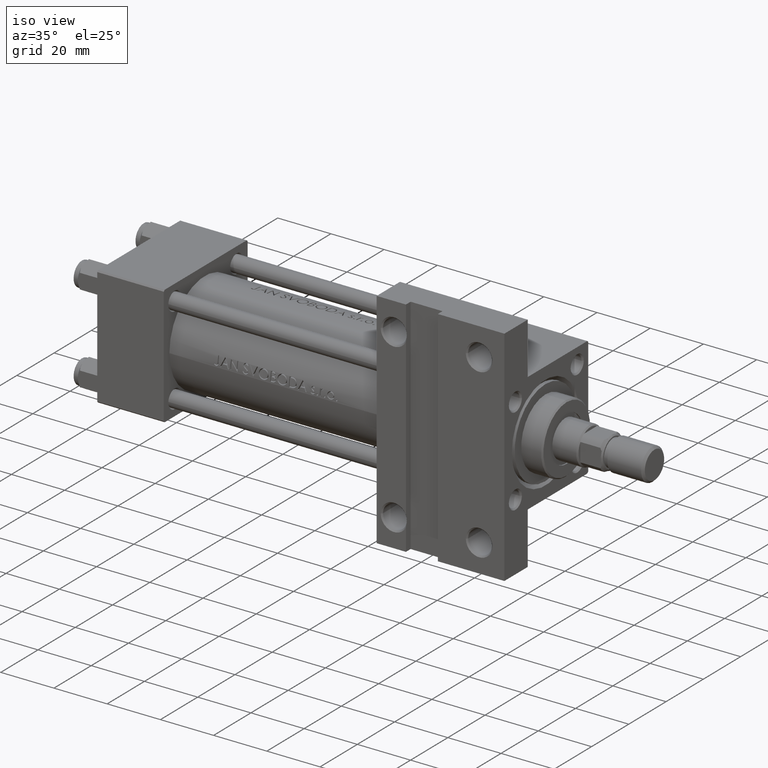
[diagram: clean part render]
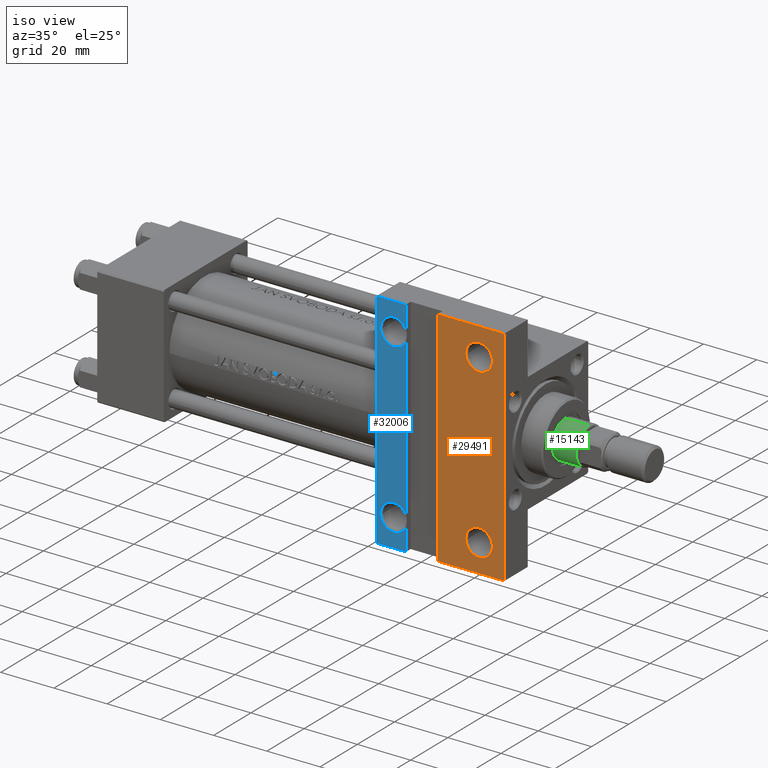
[diagram: same view with three faces highlighted in distinct colors, each labeled with its STEP entity id]
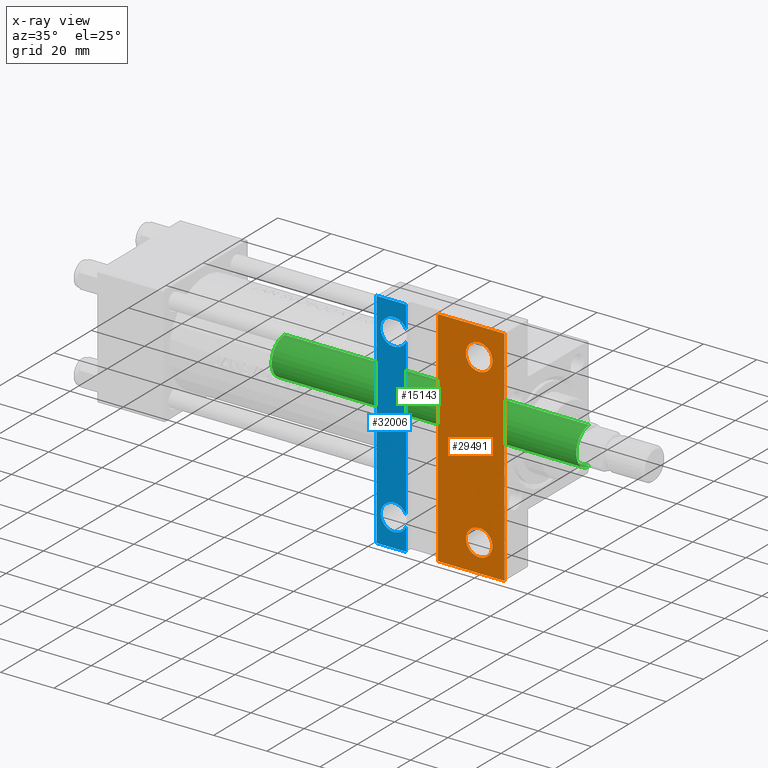
[diagram: x-ray of the same camera — body ghosted, the three highlighted faces saturated]
A machine part, iso view with three faces highlighted in distinct colors.
The next image is the same camera in x-ray (body ghosted, the three faces saturated) — at least one of them is partly hidden behind the body in this view.
Their STEP definitions:

[orange] entity #29491 — the highlighted planar face has unit normal (0, -1, -0).
#362 = VECTOR ( 'NONE', #38834, 1000.000000000000000 ) ;
#755 = CARTESIAN_POINT ( 'NONE',  ( 148.4994999999999550, -31.50000000000000000, -22.50000000000000000 ) ) ;
#782 = CARTESIAN_POINT ( 'NONE',  ( 127.9999999999999432, 41.99999999999999289, -22.50000000000000000 ) ) ;
#995 = VECTOR ( 'NONE', #40705, 1000.000000000000000 ) ;
#1049 = EDGE_CURVE ( 'NONE', #4152, #47851, #29290, .T. ) ;
#1260 = DIRECTION ( 'NONE',  ( -0.000000000000000000, -7.709882115452476934E-17, 1.000000000000000000 ) ) ;
#1331 = VERTEX_POINT ( 'NONE', #39713 ) ;
#2778 = LINE ( 'NONE', #23985, #362 ) ;
#2982 = LINE ( 'NONE', #32223, #9595 ) ;
#3825 = DIRECTION ( 'NONE',  ( 0.000000000000000000, 1.000000000000000000, 0.000000000000000000 ) ) ;
#4152 = VERTEX_POINT ( 'NONE', #755 ) ;
#5591 = EDGE_LOOP ( 'NONE', ( #40701, #33380, #30651, #6243 ) ) ;
#5730 = CARTESIAN_POINT ( 'NONE',  ( 153.0000000000000284, 22.50000000000000355, -22.49999999999999645 ) ) ;
#6243 = ORIENTED_EDGE ( 'NONE', *, *, #9465, .T. ) ;
#6559 = CIRCLE ( 'NONE', #33802, 4.999499999999983402 ) ;
#6596 = EDGE_LOOP ( 'NONE', ( #28131, #28924 ) ) ;
#7394 = EDGE_CURVE ( 'NONE', #35777, #47666, #44615, .T. ) ;
#9370 = DIRECTION ( 'NONE',  ( 0.000000000000000000, 7.709882115452476934E-17, -1.000000000000000000 ) ) ;
#9465 = EDGE_CURVE ( 'NONE', #1331, #19539, #2982, .T. ) ;
#9595 = VECTOR ( 'NONE', #46832, 1000.000000000000000 ) ;
#9615 = FACE_BOUND ( 'NONE', #6596, .T. ) ;
#11175 = ORIENTED_EDGE ( 'NONE', *, *, #15725, .T. ) ;
#11631 = EDGE_CURVE ( 'NONE', #35777, #19539, #2778, .T. ) ;
#12633 = CARTESIAN_POINT ( 'NONE',  ( 143.5000000000000284, -31.50000000000000000, -22.50000000000000000 ) ) ;
#14529 = EDGE_CURVE ( 'NONE', #47851, #4152, #19892, .T. ) ;
#15252 = DIRECTION ( 'NONE',  ( -0.000000000000000000, -7.709882115452476934E-17, 1.000000000000000000 ) ) ;
#15725 = EDGE_CURVE ( 'NONE', #22274, #40651, #44075, .T. ) ;
#17007 = LINE ( 'NONE', #17238, #21703 ) ;
#17238 = CARTESIAN_POINT ( 'NONE',  ( 153.0000000000000284, 22.50000000000000355, -22.49999999999999645 ) ) ;
#17652 = EDGE_CURVE ( 'NONE', #47666, #1331, #17007, .T. ) ;
#19539 = VERTEX_POINT ( 'NONE', #40886 ) ;
#19892 = CIRCLE ( 'NONE', #47128, 4.999499999999948763 ) ;
#21703 = VECTOR ( 'NONE', #43324, 1000.000000000000000 ) ;
#22274 = VERTEX_POINT ( 'NONE', #37439 ) ;
#23051 = AXIS2_PLACEMENT_3D ( 'NONE', #27317, #1260, #31001 ) ;
#23985 = CARTESIAN_POINT ( 'NONE',  ( 127.9999999999999432, -41.99999999999999289, -22.50000000000000000 ) ) ;
#24233 = DIRECTION ( 'NONE',  ( 0.000000000000000000, 1.000000000000000000, 7.709882115452476934E-17 ) ) ;
#24480 = FACE_BOUND ( 'NONE', #30786, .T. ) ;
#27317 = CARTESIAN_POINT ( 'NONE',  ( 143.5000000000000284, 31.50000000000000000, -22.49999999999999645 ) ) ;
#27448 = AXIS2_PLACEMENT_3D ( 'NONE', #5730, #9370, #24233 ) ;
#28131 = ORIENTED_EDGE ( 'NONE', *, *, #14529, .T. ) ;
#28924 = ORIENTED_EDGE ( 'NONE', *, *, #1049, .T. ) ;
#29290 = CIRCLE ( 'NONE', #40966, 4.999499999999948763 ) ;
#29491 = ADVANCED_FACE ( 'NONE', ( #42768, #24480, #9615 ), #39332, .T. ) ;
#29656 = CARTESIAN_POINT ( 'NONE',  ( 143.5000000000000284, -31.50000000000000000, -22.50000000000000000 ) ) ;
#30651 = ORIENTED_EDGE ( 'NONE', *, *, #17652, .T. ) ;
#30786 = EDGE_LOOP ( 'NONE', ( #40467, #11175 ) ) ;
#31001 = DIRECTION ( 'NONE',  ( 0.000000000000000000, 1.000000000000000000, 0.000000000000000000 ) ) ;
#32223 = CARTESIAN_POINT ( 'NONE',  ( 105.0000000000000000, -42.00000000000000711, -22.50000000000000000 ) ) ;
#33380 = ORIENTED_EDGE ( 'NONE', *, *, #7394, .T. ) ;
#33695 = CARTESIAN_POINT ( 'NONE',  ( 138.5005000000000734, -31.50000000000000000, -22.50000000000000000 ) ) ;
#33802 = AXIS2_PLACEMENT_3D ( 'NONE', #42527, #43893, #42760 ) ;
#34573 = DIRECTION ( 'NONE',  ( -0.000000000000000000, -7.709882115452476934E-17, 1.000000000000000000 ) ) ;
#35777 = VERTEX_POINT ( 'NONE', #782 ) ;
#37439 = CARTESIAN_POINT ( 'NONE',  ( 148.4995000000000118, 31.50000000000000000, -22.49999999999999645 ) ) ;
#38834 = DIRECTION ( 'NONE',  ( -0.000000000000000000, -1.000000000000000000, -0.000000000000000000 ) ) ;
#39028 = EDGE_CURVE ( 'NONE', #40651, #22274, #6559, .T. ) ;
#39332 = PLANE ( 'NONE',  #27448 ) ;
#39713 = CARTESIAN_POINT ( 'NONE',  ( 152.9999999999999716, -42.00000000000000711, -22.50000000000000000 ) ) ;
#40467 = ORIENTED_EDGE ( 'NONE', *, *, #39028, .T. ) ;
#40651 = VERTEX_POINT ( 'NONE', #45023 ) ;
#40701 = ORIENTED_EDGE ( 'NONE', *, *, #11631, .F. ) ;
#40705 = DIRECTION ( 'NONE',  ( 1.000000000000000000, 0.000000000000000000, 0.000000000000000000 ) ) ;
#40886 = CARTESIAN_POINT ( 'NONE',  ( 127.9999999999999432, -41.99999999999999289, -22.50000000000000000 ) ) ;
#40966 = AXIS2_PLACEMENT_3D ( 'NONE', #29656, #15252, #3825 ) ;
#42023 = CARTESIAN_POINT ( 'NONE',  ( 152.9999999999999716, 41.99999999999999289, -22.50000000000000000 ) ) ;
#42527 = CARTESIAN_POINT ( 'NONE',  ( 143.5000000000000284, 31.50000000000000000, -22.49999999999999645 ) ) ;
#42760 = DIRECTION ( 'NONE',  ( 0.000000000000000000, 1.000000000000000000, 0.000000000000000000 ) ) ;
#42768 = FACE_OUTER_BOUND ( 'NONE', #5591, .T. ) ;
#43324 = DIRECTION ( 'NONE',  ( 0.000000000000000000, -1.000000000000000000, -7.709882115452476934E-17 ) ) ;
#43893 = DIRECTION ( 'NONE',  ( -0.000000000000000000, -7.709882115452476934E-17, 1.000000000000000000 ) ) ;
#44075 = CIRCLE ( 'NONE', #23051, 4.999499999999983402 ) ;
#44372 = CARTESIAN_POINT ( 'NONE',  ( 105.0000000000000142, 41.99999999999999289, -22.50000000000000000 ) ) ;
#44615 = LINE ( 'NONE', #44372, #995 ) ;
#45023 = CARTESIAN_POINT ( 'NONE',  ( 138.5005000000000166, 31.50000000000000000, -22.49999999999999645 ) ) ;
#45548 = DIRECTION ( 'NONE',  ( 0.000000000000000000, 1.000000000000000000, 0.000000000000000000 ) ) ;
#46832 = DIRECTION ( 'NONE',  ( -1.000000000000000000, -0.000000000000000000, -0.000000000000000000 ) ) ;
#47128 = AXIS2_PLACEMENT_3D ( 'NONE', #12633, #34573, #45548 ) ;
#47666 = VERTEX_POINT ( 'NONE', #42023 ) ;
#47851 = VERTEX_POINT ( 'NONE', #33695 ) ;

[blue] entity #32006 — the highlighted planar face has unit normal (0, -1, -0).
#95 = ORIENTED_EDGE ( 'NONE', *, *, #8906, .T. ) ;
#358 = VECTOR ( 'NONE', #12543, 1000.000000000000000 ) ;
#1411 = AXIS2_PLACEMENT_3D ( 'NONE', #21993, #14677, #37586 ) ;
#2846 = CIRCLE ( 'NONE', #1411, 4.999499999999990507 ) ;
#3095 = LINE ( 'NONE', #35990, #35486 ) ;
#3314 = VECTOR ( 'NONE', #22854, 1000.000000000000000 ) ;
#3373 = CARTESIAN_POINT ( 'NONE',  ( 115.9999999999999574, 33.67830214846343040, -22.50000000000000000 ) ) ;
#3508 = VERTEX_POINT ( 'NONE', #17443 ) ;
#4088 = DIRECTION ( 'NONE',  ( 0.000000000000000000, 7.709882115452476934E-17, -1.000000000000000000 ) ) ;
#4102 = LINE ( 'NONE', #11643, #3314 ) ;
#4139 = AXIS2_PLACEMENT_3D ( 'NONE', #14801, #4088, #23080 ) ;
#4290 = EDGE_CURVE ( 'NONE', #13535, #37592, #4102, .T. ) ;
#4348 = DIRECTION ( 'NONE',  ( -0.000000000000000000, -7.709882115452476934E-17, 1.000000000000000000 ) ) ;
#5317 = EDGE_CURVE ( 'NONE', #14575, #36284, #42163, .T. ) ;
#6792 = DIRECTION ( 'NONE',  ( 0.000000000000000000, 1.000000000000000000, 0.000000000000000000 ) ) ;
#7737 = FACE_OUTER_BOUND ( 'NONE', #45096, .T. ) ;
#7841 = CARTESIAN_POINT ( 'NONE',  ( 115.9999999999999574, 29.32169785153656960, -22.50000000000000000 ) ) ;
#8906 = EDGE_CURVE ( 'NONE', #31915, #3508, #29829, .T. ) ;
#9559 = AXIS2_PLACEMENT_3D ( 'NONE', #41379, #4348, #16272 ) ;
#9835 = VERTEX_POINT ( 'NONE', #7841 ) ;
#11447 = DIRECTION ( 'NONE',  ( 0.000000000000000000, 1.000000000000000000, 0.000000000000000000 ) ) ;
#11643 = CARTESIAN_POINT ( 'NONE',  ( 105.0000000000000000, -42.00000000000000711, -22.50000000000000000 ) ) ;
#12444 = CARTESIAN_POINT ( 'NONE',  ( 105.0000000000000142, 22.50000000000000355, -22.49999999999999645 ) ) ;
#12482 = ORIENTED_EDGE ( 'NONE', *, *, #38977, .F. ) ;
#12543 = DIRECTION ( 'NONE',  ( 0.000000000000000000, 1.000000000000000000, 0.000000000000000000 ) ) ;
#12852 = CIRCLE ( 'NONE', #43195, 4.999499999999948763 ) ;
#12988 = ORIENTED_EDGE ( 'NONE', *, *, #5317, .T. ) ;
#13189 = ORIENTED_EDGE ( 'NONE', *, *, #39017, .T. ) ;
#13306 = EDGE_CURVE ( 'NONE', #37904, #37592, #45837, .T. ) ;
#13535 = VERTEX_POINT ( 'NONE', #41637 ) ;
#14575 = VERTEX_POINT ( 'NONE', #17003 ) ;
#14677 = DIRECTION ( 'NONE',  ( -0.000000000000000000, -7.709882115452476934E-17, 1.000000000000000000 ) ) ;
#14801 = CARTESIAN_POINT ( 'NONE',  ( 153.0000000000000284, 22.50000000000000355, -22.49999999999999645 ) ) ;
#15833 = EDGE_CURVE ( 'NONE', #31915, #36877, #3095, .T. ) ;
#16272 = DIRECTION ( 'NONE',  ( 0.000000000000000000, 1.000000000000000000, 0.000000000000000000 ) ) ;
#17003 = CARTESIAN_POINT ( 'NONE',  ( 115.9999999999999574, -29.32169785153667263, -22.50000000000000000 ) ) ;
#17017 = CARTESIAN_POINT ( 'NONE',  ( 111.5000000000000142, -31.50000000000000000, -22.50000000000000000 ) ) ;
#17443 = CARTESIAN_POINT ( 'NONE',  ( 106.5005000000000308, 31.50000000000000000, -22.49999999999999645 ) ) ;
#17739 = DIRECTION ( 'NONE',  ( -0.000000000000000000, -7.709882115452476934E-17, 1.000000000000000000 ) ) ;
#18526 = LINE ( 'NONE', #29508, #21383 ) ;
#19090 = VECTOR ( 'NONE', #27321, 1000.000000000000000 ) ;
#19566 = CARTESIAN_POINT ( 'NONE',  ( 115.9999999999999574, -33.67830214846332382, -22.50000000000000000 ) ) ;
#20340 = CARTESIAN_POINT ( 'NONE',  ( 115.9999999999999574, -41.99999999999999289, -22.50000000000000000 ) ) ;
#21383 = VECTOR ( 'NONE', #11447, 1000.000000000000000 ) ;
#21993 = CARTESIAN_POINT ( 'NONE',  ( 111.5000000000000142, 31.50000000000000000, -22.49999999999999645 ) ) ;
#22854 = DIRECTION ( 'NONE',  ( -1.000000000000000000, -0.000000000000000000, -0.000000000000000000 ) ) ;
#23080 = DIRECTION ( 'NONE',  ( 0.000000000000000000, 1.000000000000000000, 7.709882115452476934E-17 ) ) ;
#23624 = CARTESIAN_POINT ( 'NONE',  ( 105.0000000000000000, -42.00000000000000711, -22.50000000000000000 ) ) ;
#24938 = CARTESIAN_POINT ( 'NONE',  ( 105.0000000000000142, 41.99999999999999289, -22.50000000000000000 ) ) ;
#25735 = DIRECTION ( 'NONE',  ( 0.000000000000000000, 1.000000000000000000, 0.000000000000000000 ) ) ;
#27321 = DIRECTION ( 'NONE',  ( 0.000000000000000000, -1.000000000000000000, -7.709882115452476934E-17 ) ) ;
#27426 = CARTESIAN_POINT ( 'NONE',  ( 105.0000000000000142, 41.99999999999999289, -22.50000000000000000 ) ) ;
#27666 = LINE ( 'NONE', #20340, #358 ) ;
#29469 = CARTESIAN_POINT ( 'NONE',  ( 111.5000000000000142, 31.50000000000000000, -22.49999999999999645 ) ) ;
#29508 = CARTESIAN_POINT ( 'NONE',  ( 115.9999999999999574, -41.99999999999999289, -22.50000000000000000 ) ) ;
#29829 = CIRCLE ( 'NONE', #30594, 4.999499999999990507 ) ;
#29976 = CARTESIAN_POINT ( 'NONE',  ( 115.9999999999999574, 41.99999999999999289, -22.50000000000000000 ) ) ;
#30594 = AXIS2_PLACEMENT_3D ( 'NONE', #29469, #40650, #6792 ) ;
#30741 = ORIENTED_EDGE ( 'NONE', *, *, #15833, .F. ) ;
#31571 = DIRECTION ( 'NONE',  ( 1.000000000000000000, 0.000000000000000000, 0.000000000000000000 ) ) ;
#31902 = DIRECTION ( 'NONE',  ( 0.000000000000000000, 1.000000000000000000, 0.000000000000000000 ) ) ;
#31915 = VERTEX_POINT ( 'NONE', #3373 ) ;
#32006 = ADVANCED_FACE ( 'NONE', ( #7737 ), #40880, .T. ) ;
#32032 = LINE ( 'NONE', #27426, #40019 ) ;
#35486 = VECTOR ( 'NONE', #25735, 1000.000000000000000 ) ;
#35640 = VERTEX_POINT ( 'NONE', #19566 ) ;
#35990 = CARTESIAN_POINT ( 'NONE',  ( 115.9999999999999574, -41.99999999999999289, -22.50000000000000000 ) ) ;
#36284 = VERTEX_POINT ( 'NONE', #38103 ) ;
#36415 = ORIENTED_EDGE ( 'NONE', *, *, #13306, .F. ) ;
#36877 = VERTEX_POINT ( 'NONE', #29976 ) ;
#37443 = ORIENTED_EDGE ( 'NONE', *, *, #40340, .T. ) ;
#37586 = DIRECTION ( 'NONE',  ( 0.000000000000000000, 1.000000000000000000, 0.000000000000000000 ) ) ;
#37592 = VERTEX_POINT ( 'NONE', #23624 ) ;
#37904 = VERTEX_POINT ( 'NONE', #24938 ) ;
#38103 = CARTESIAN_POINT ( 'NONE',  ( 106.5005000000000734, -31.50000000000000000, -22.50000000000000000 ) ) ;
#38977 = EDGE_CURVE ( 'NONE', #14575, #9835, #27666, .T. ) ;
#39017 = EDGE_CURVE ( 'NONE', #37904, #36877, #32032, .T. ) ;
#39981 = EDGE_CURVE ( 'NONE', #13535, #35640, #18526, .T. ) ;
#40019 = VECTOR ( 'NONE', #31571, 1000.000000000000000 ) ;
#40340 = EDGE_CURVE ( 'NONE', #36284, #35640, #12852, .T. ) ;
#40650 = DIRECTION ( 'NONE',  ( -0.000000000000000000, -7.709882115452476934E-17, 1.000000000000000000 ) ) ;
#40880 = PLANE ( 'NONE',  #4139 ) ;
#41379 = CARTESIAN_POINT ( 'NONE',  ( 111.5000000000000142, -31.50000000000000000, -22.50000000000000000 ) ) ;
#41637 = CARTESIAN_POINT ( 'NONE',  ( 115.9999999999999574, -41.99999999999999289, -22.50000000000000000 ) ) ;
#42163 = CIRCLE ( 'NONE', #9559, 4.999499999999948763 ) ;
#43195 = AXIS2_PLACEMENT_3D ( 'NONE', #17017, #17739, #31902 ) ;
#43675 = ORIENTED_EDGE ( 'NONE', *, *, #4290, .T. ) ;
#45096 = EDGE_LOOP ( 'NONE', ( #48087, #43675, #36415, #13189, #30741, #95, #47330, #12482, #12988, #37443 ) ) ;
#45837 = LINE ( 'NONE', #12444, #19090 ) ;
#46961 = EDGE_CURVE ( 'NONE', #3508, #9835, #2846, .T. ) ;
#47330 = ORIENTED_EDGE ( 'NONE', *, *, #46961, .T. ) ;
#48087 = ORIENTED_EDGE ( 'NONE', *, *, #39981, .F. ) ;

[green] entity #15143 — the highlighted cylindrical surface (edge-blend (fillet) strip) has radius 7 mm, axis along (-1, 0, 0).
#1765 = CARTESIAN_POINT ( 'NONE',  ( 7.000000000000000000, 8.572527594031473190E-16, 145.0000000000000284 ) ) ;
#1951 = DIRECTION ( 'NONE',  ( -0.000000000000000000, -0.000000000000000000, -1.000000000000000000 ) ) ;
#3082 = EDGE_CURVE ( 'NONE', #9568, #9099, #16923, .T. ) ;
#3771 = CARTESIAN_POINT ( 'NONE',  ( -7.000000000000000000, 0.000000000000000000, 144.4999999999999716 ) ) ;
#4172 = CARTESIAN_POINT ( 'NONE',  ( 7.000000000000000000, 8.572527594031473190E-16, 30.00000000000000000 ) ) ;
#4517 = AXIS2_PLACEMENT_3D ( 'NONE', #42216, #30056, #37596 ) ;
#5175 = DIRECTION ( 'NONE',  ( -0.000000000000000000, -0.000000000000000000, -1.000000000000000000 ) ) ;
#6396 = FACE_OUTER_BOUND ( 'NONE', #25008, .T. ) ;
#6426 = VECTOR ( 'NONE', #1951, 1000.000000000000000 ) ;
#6641 = CYLINDRICAL_SURFACE ( 'NONE', #30844, 7.000000000000000000 ) ;
#6887 = DIRECTION ( 'NONE',  ( -0.000000000000000000, -0.000000000000000000, -1.000000000000000000 ) ) ;
#6933 = CARTESIAN_POINT ( 'NONE',  ( 7.000000000000000000, 8.572527594031473190E-16, 144.4999999999999716 ) ) ;
#7662 = EDGE_CURVE ( 'NONE', #26476, #9099, #17026, .T. ) ;
#9099 = VERTEX_POINT ( 'NONE', #11408 ) ;
#9568 = VERTEX_POINT ( 'NONE', #4172 ) ;
#11041 = CIRCLE ( 'NONE', #31289, 7.000000000000000000 ) ;
#11408 = CARTESIAN_POINT ( 'NONE',  ( -7.000000000000000000, 0.000000000000000000, 30.00000000000000000 ) ) ;
#13772 = DIRECTION ( 'NONE',  ( 0.000000000000000000, 0.000000000000000000, -1.000000000000000000 ) ) ;
#14137 = VERTEX_POINT ( 'NONE', #6933 ) ;
#15143 = ADVANCED_FACE ( 'NONE', ( #6396 ), #6641, .T. ) ;
#16923 = CIRCLE ( 'NONE', #4517, 7.000000000000000000 ) ;
#17026 = LINE ( 'NONE', #23634, #6426 ) ;
#17058 = ORIENTED_EDGE ( 'NONE', *, *, #3082, .T. ) ;
#23634 = CARTESIAN_POINT ( 'NONE',  ( -7.000000000000000000, 0.000000000000000000, 145.0000000000000284 ) ) ;
#23723 = VECTOR ( 'NONE', #5175, 1000.000000000000000 ) ;
#24892 = EDGE_CURVE ( 'NONE', #26476, #14137, #11041, .T. ) ;
#25008 = EDGE_LOOP ( 'NONE', ( #32748, #37324, #17058, #29912 ) ) ;
#26476 = VERTEX_POINT ( 'NONE', #3771 ) ;
#29132 = DIRECTION ( 'NONE',  ( 1.000000000000000000, 0.000000000000000000, 0.000000000000000000 ) ) ;
#29912 = ORIENTED_EDGE ( 'NONE', *, *, #7662, .F. ) ;
#30056 = DIRECTION ( 'NONE',  ( 0.000000000000000000, 0.000000000000000000, 1.000000000000000000 ) ) ;
#30844 = AXIS2_PLACEMENT_3D ( 'NONE', #40260, #6887, #39771 ) ;
#31289 = AXIS2_PLACEMENT_3D ( 'NONE', #47406, #13772, #29132 ) ;
#32748 = ORIENTED_EDGE ( 'NONE', *, *, #24892, .T. ) ;
#37324 = ORIENTED_EDGE ( 'NONE', *, *, #39618, .T. ) ;
#37596 = DIRECTION ( 'NONE',  ( 1.000000000000000000, 0.000000000000000000, 0.000000000000000000 ) ) ;
#39618 = EDGE_CURVE ( 'NONE', #14137, #9568, #45870, .T. ) ;
#39771 = DIRECTION ( 'NONE',  ( -1.000000000000000000, 0.000000000000000000, 0.000000000000000000 ) ) ;
#40260 = CARTESIAN_POINT ( 'NONE',  ( 0.000000000000000000, 0.000000000000000000, 145.0000000000000284 ) ) ;
#42216 = CARTESIAN_POINT ( 'NONE',  ( 0.000000000000000000, 0.000000000000000000, 30.00000000000000000 ) ) ;
#45870 = LINE ( 'NONE', #1765, #23723 ) ;
#47406 = CARTESIAN_POINT ( 'NONE',  ( 0.000000000000000000, 0.000000000000000000, 144.4999999999999716 ) ) ;